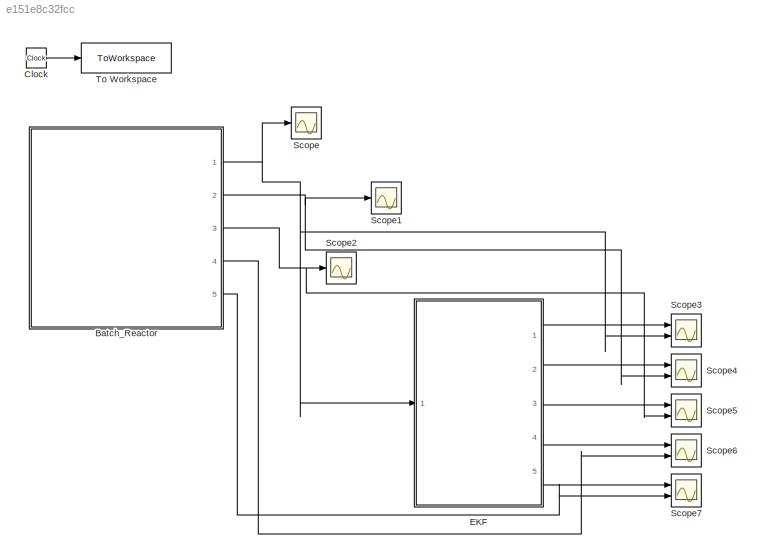
MODEL slx_e151e8c32fcc
KIND model
CONFIG AbsTol = 1e-4
CONFIG EnableMultiTasking = off
CONFIG FixedStep = auto
CONFIG MaxStep = auto
CONFIG MinStep = auto
CONFIG RelTol = 1e-4
CONFIG SampleTimeConstraint = Unconstrained
CONFIG SolverName = ode15s
CONFIG StartTime = 0.0
CONFIG StopTime = 24.1
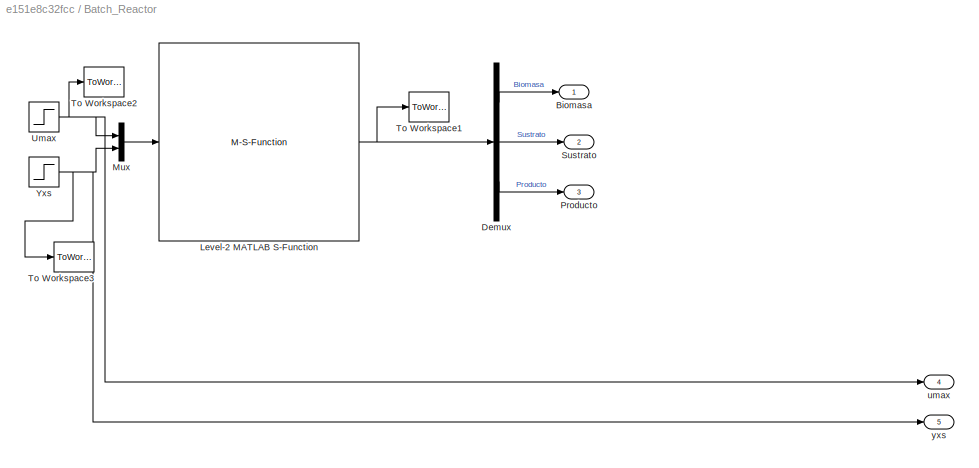
BLOCK [SubSystem] Batch_Reactor
  Ports = [0, 5]
  RequestExecContextInheritance = off
BLOCK [Outport] Batch_Reactor/Biomasa
BLOCK [Demux] Batch_Reactor/Demux
  Outputs = 3
  Ports = [1, 3]
BLOCK [M-S-Function] Batch_Reactor/Level-2 MATLAB S-Function
  FunctionName = biobatch_PP
  Parameters = 0.01, 20, 0
  Ports = [1, 1]
BLOCK [Mux] Batch_Reactor/Mux
  DisplayOption = bar
  Inputs = 2
  Ports = [2, 1]
BLOCK [Outport] Batch_Reactor/Producto
  Port = 3
BLOCK [Outport] Batch_Reactor/Sustrato
  Port = 2
BLOCK [ToWorkspace] Batch_Reactor/To Workspace1
  FixptAsFi = on
  MaxDataPoints = inf
  Ports = [1]
  SampleTime = 0.1
  VariableName = y
BLOCK [ToWorkspace] Batch_Reactor/To Workspace2
  FixptAsFi = on
  MaxDataPoints = inf
  Ports = [1]
  SampleTime = 0.1
  VariableName = P
BLOCK [ToWorkspace] Batch_Reactor/To Workspace3
  FixptAsFi = on
  MaxDataPoints = inf
  Ports = [1]
  SampleTime = 0.1
  VariableName = P1
BLOCK [Step] Batch_Reactor/Umax
  After = 0.83
  Before = 0.83
  SampleTime = 0.1
  Time = 24.1/2
BLOCK [Step] Batch_Reactor/Yxs
  After = 0.8
  Before = 0.8
  SampleTime = 0.1
  Time = 24.1/2
BLOCK [Outport] Batch_Reactor/umax
  Port = 4
BLOCK [Outport] Batch_Reactor/yxs
  Port = 5
BLOCK [Clock] Clock
  Decimation = 1
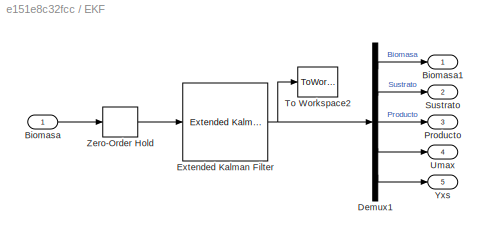
BLOCK [SubSystem] EKF
  Ports = [1, 5]
  RequestExecContextInheritance = off
BLOCK [Inport] EKF/Biomasa
BLOCK [Outport] EKF/Biomasa1
BLOCK [Demux] EKF/Demux1
  Outputs = 5
  Ports = [1, 5]
BLOCK [Reference] EKF/Extended Kalman Filter  REF=sharedTrackingLibrary/Extended Kalman Filter
  Ports = [1, 1]
  SourceBlock = sharedTrackingLibrary/Extended Kalman Filter
  SourceProductBaseCode = TF,AE,PW,CT,DR,ID,LP,NV,AR,RO,RR,UV,VE
  SourceType = Extended Kalman Filter
BLOCK [Outport] EKF/Producto
  Port = 3
BLOCK [Outport] EKF/Sustrato
  Port = 2
BLOCK [ToWorkspace] EKF/To Workspace2
  FixptAsFi = on
  MaxDataPoints = inf
  Ports = [1]
  SampleTime = -1
  VariableName = y1
BLOCK [Outport] EKF/Umax
  Port = 4
BLOCK [Outport] EKF/Yxs
  Port = 5
BLOCK [ZeroOrderHold] EKF/Zero-Order Hold
  NameLocation = top
  SampleTime = Ts
BLOCK [Scope] Scope
  Floating = off
  NumInputPorts = 1
  Ports = [1]
  ScopeSpecificationString = Simulink.scopes.TimeScopeBlockCfg('CurrentConfiguration', extmgr.ConfigurationSet(extmgr.Configuration('Core','General UI',true),extmgr.Configuration('Core','Source UI',true),extmgr.Configuration('Sources','WiredSimulink',true),extmgr.Configuration('Visuals','Time Domain',true,'SerializedDisplays',{struct('MinYLimReal','-0.21174','MaxYLimReal','2.00569','YLabelReal','','MinYLimMag','0.00000','MaxY...<+1341ch>
BLOCK [Scope] Scope1
  Floating = off
  NumInputPorts = 1
  Ports = [1]
  ScopeSpecificationString = Simulink.scopes.TimeScopeBlockCfg('CurrentConfiguration', extmgr.ConfigurationSet(extmgr.Configuration('Core','General UI',true),extmgr.Configuration('Core','Source UI',true),extmgr.Configuration('Sources','WiredSimulink',true,'DataLoggingVariableName','ScopeData1'),extmgr.Configuration('Visuals','Time Domain',true,'SerializedDisplays',{struct('MinYLimReal','-2.50026','MaxYLimReal','22.50003','YLa...<+1370ch>
BLOCK [Scope] Scope2
  Floating = off
  NumInputPorts = 1
  Ports = [1]
  ScopeSpecificationString = Simulink.scopes.TimeScopeBlockCfg('CurrentConfiguration', extmgr.ConfigurationSet(extmgr.Configuration('Core','General UI',true),extmgr.Configuration('Core','Source UI',true),extmgr.Configuration('Sources','WiredSimulink',true,'DataLoggingVariableName','ScopeData2'),extmgr.Configuration('Visuals','Time Domain',true),extmgr.Configuration('Tools','Plot Navigation',true),extmgr.Configuration('Tools',...<+40ch>
BLOCK [Scope] Scope3
  Floating = off
  NumInputPorts = 2
  Ports = [2]
  ScopeSpecificationString = Simulink.scopes.TimeScopeBlockCfg('CurrentConfiguration', extmgr.ConfigurationSet(extmgr.Configuration('Core','General UI',true),extmgr.Configuration('Core','Source UI',true),extmgr.Configuration('Sources','WiredSimulink',true,'DataLoggingVariableName','ScopeData1'),extmgr.Configuration('Visuals','Time Domain',true,'SerializedDisplays',{struct('MinYLimReal','-0.21174','MaxYLimReal','2.00569','YLab...<+1423ch>
BLOCK [Scope] Scope4
  Floating = off
  NumInputPorts = 2
  Ports = [2]
  ScopeSpecificationString = Simulink.scopes.TimeScopeBlockCfg('CurrentConfiguration', extmgr.ConfigurationSet(extmgr.Configuration('Core','General UI',true),extmgr.Configuration('Core','Source UI',true),extmgr.Configuration('Sources','WiredSimulink',true,'DataLoggingVariableName','ScopeData2'),extmgr.Configuration('Visuals','Time Domain',true,'SerializedDisplays',{struct('MinYLimReal','17.36092','MaxYLimReal','20.29323','YLa...<+1432ch>
BLOCK [Scope] Scope5
  Floating = off
  NumInputPorts = 2
  Ports = [2]
  ScopeSpecificationString = Simulink.scopes.TimeScopeBlockCfg('CurrentConfiguration', extmgr.ConfigurationSet(extmgr.Configuration('Core','General UI',true),extmgr.Configuration('Core','Source UI',true),extmgr.Configuration('Sources','WiredSimulink',true,'DataLoggingVariableName','ScopeData3'),extmgr.Configuration('Visuals','Time Domain',true,'SerializedDisplays',{struct('MinYLimReal','-0.01375','MaxYLimReal','0.12371','YLab...<+1396ch>
BLOCK [Scope] Scope6
  Floating = off
  NumInputPorts = 2
  Ports = [2]
  ScopeSpecificationString = Simulink.scopes.TimeScopeBlockCfg('CurrentConfiguration', extmgr.ConfigurationSet(extmgr.Configuration('Core','General UI',true),extmgr.Configuration('Core','Source UI',true),extmgr.Configuration('Sources','WiredSimulink',true,'DataLoggingVariableName','ScopeData4'),extmgr.Configuration('Visuals','Time Domain',true,'SerializedDisplays',{struct('MinYLimReal','0.35832','MaxYLimReal','0.88651','YLabe...<+1380ch>
BLOCK [Scope] Scope7
  Floating = off
  NumInputPorts = 2
  Ports = [2]
  ScopeSpecificationString = Simulink.scopes.TimeScopeBlockCfg('CurrentConfiguration', extmgr.ConfigurationSet(extmgr.Configuration('Core','General UI',true),extmgr.Configuration('Core','Source UI',true),extmgr.Configuration('Sources','WiredSimulink',true,'DataLoggingVariableName','ScopeData5'),extmgr.Configuration('Visuals','Time Domain',true,'SerializedDisplays',{struct('MinYLimReal','0.74432','MaxYLimReal','0.84935','YLabe...<+1380ch>
BLOCK [ToWorkspace] To Workspace
  FixptAsFi = on
  MaxDataPoints = inf
  Ports = [1]
  SampleTime = 0.1
  VariableName = t
LINE Batch_Reactor/Demux:1 -> Batch_Reactor/Biomasa:1
LINE Batch_Reactor/Demux:2 -> Batch_Reactor/Sustrato:1
LINE Batch_Reactor/Demux:3 -> Batch_Reactor/Producto:1
NET Batch_Reactor/Level-2 MATLAB S-Function:1 -> Batch_Reactor/Demux:1, Batch_Reactor/To Workspace1:1
LINE Batch_Reactor/Mux:1 -> Batch_Reactor/Level-2 MATLAB S-Function:1
NET Batch_Reactor/Umax:1 -> Batch_Reactor/Mux:1, Batch_Reactor/To Workspace2:1, Batch_Reactor/umax:1
NET Batch_Reactor/Yxs:1 -> Batch_Reactor/Mux:2, Batch_Reactor/To Workspace3:1, Batch_Reactor/yxs:1
NET Batch_Reactor:1 -> EKF:1, Scope3:2, Scope:1
NET Batch_Reactor:2 -> Scope1:1, Scope4:2
NET Batch_Reactor:3 -> Scope2:1, Scope5:2
LINE Batch_Reactor:4 -> Scope6:2
LINE Batch_Reactor:5 -> Scope7:2
LINE Clock:1 -> To Workspace:1
LINE EKF/Biomasa:1 -> EKF/Zero-Order Hold:1
LINE EKF/Demux1:1 -> EKF/Biomasa1:1
LINE EKF/Demux1:2 -> EKF/Sustrato:1
LINE EKF/Demux1:3 -> EKF/Producto:1
LINE EKF/Demux1:4 -> EKF/Umax:1
LINE EKF/Demux1:5 -> EKF/Yxs:1
NET EKF/Extended Kalman Filter:1 -> EKF/Demux1:1, EKF/To Workspace2:1
LINE EKF/Zero-Order Hold:1 -> EKF/Extended Kalman Filter:1
LINE EKF:1 -> Scope3:1
LINE EKF:2 -> Scope4:1
LINE EKF:3 -> Scope5:1
LINE EKF:4 -> Scope6:1
LINE EKF:5 -> Scope7:1
note: NET lines group one-source signal fan-out (src -> all destinations, sorted); 1:1 wires keep LINE
